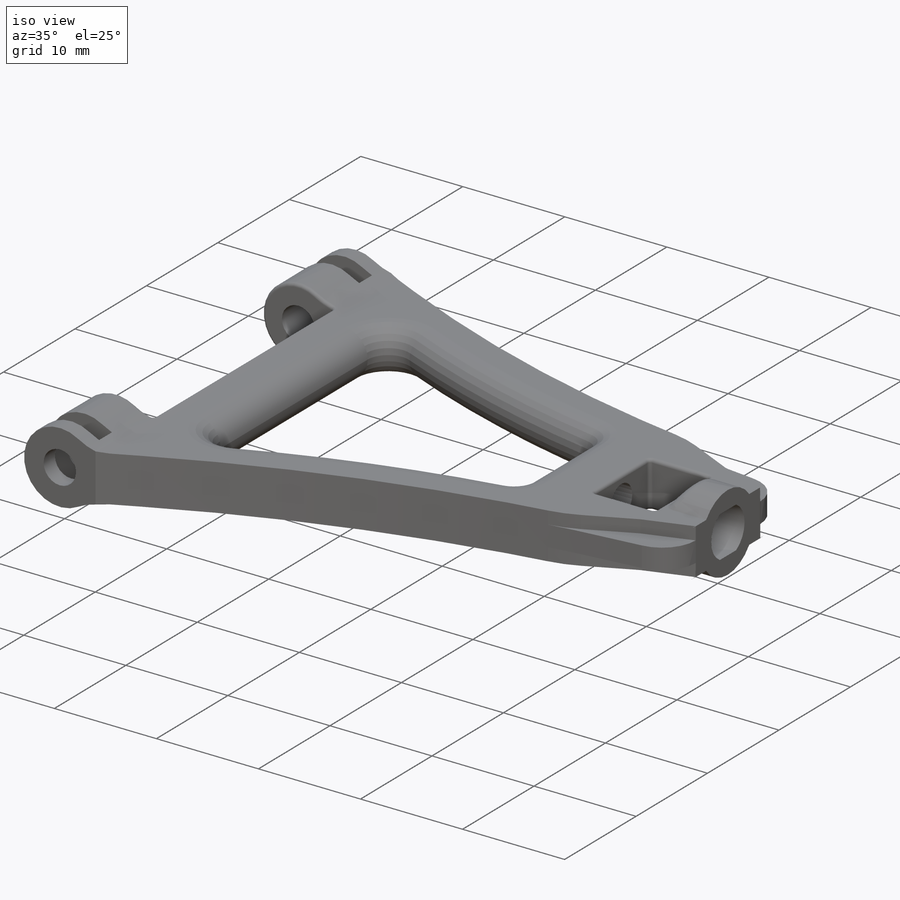
[diagram: iso view]
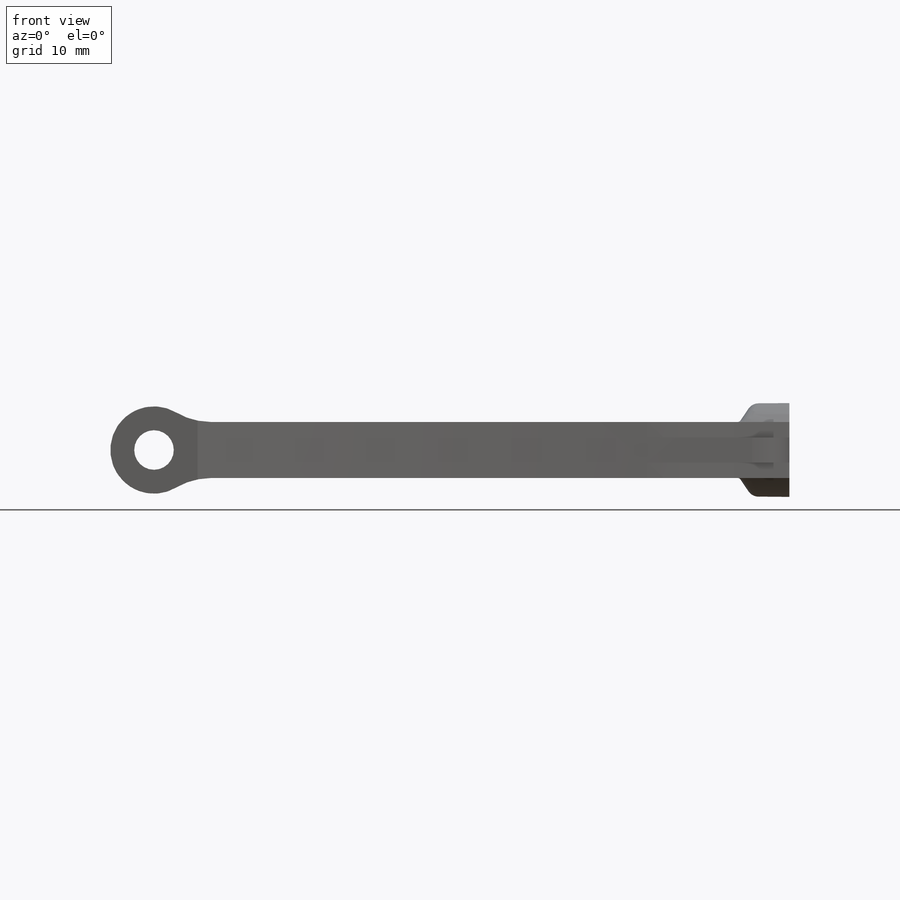
[diagram: front view]
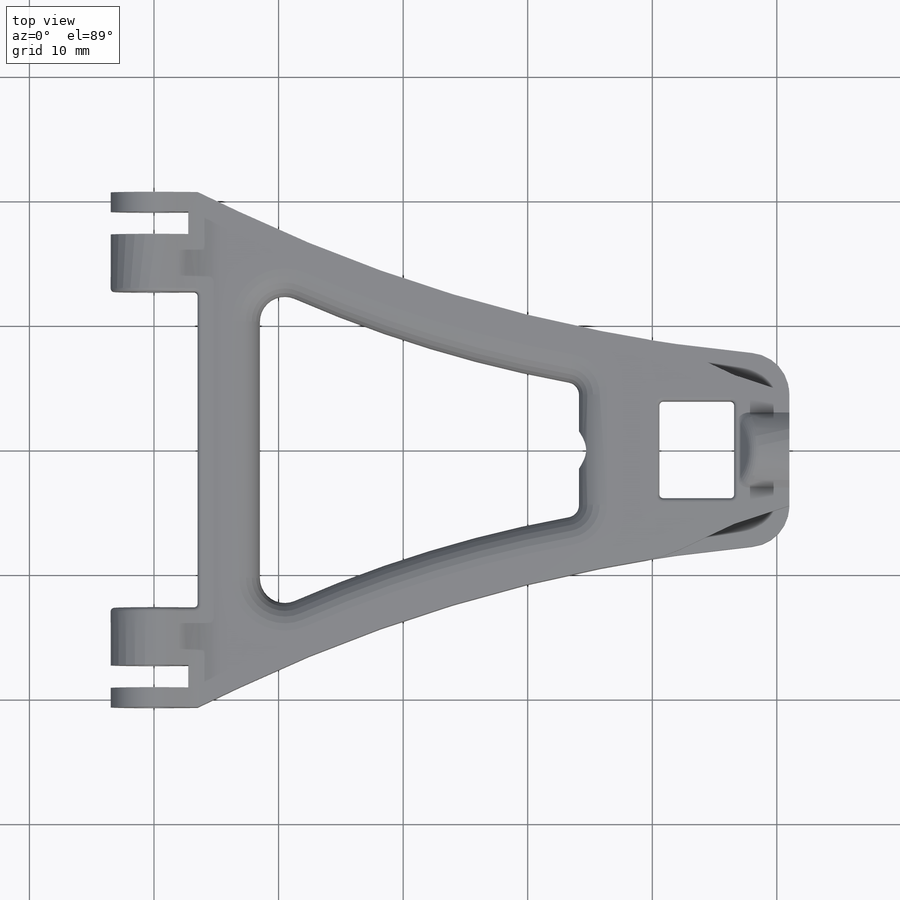
[diagram: top view]
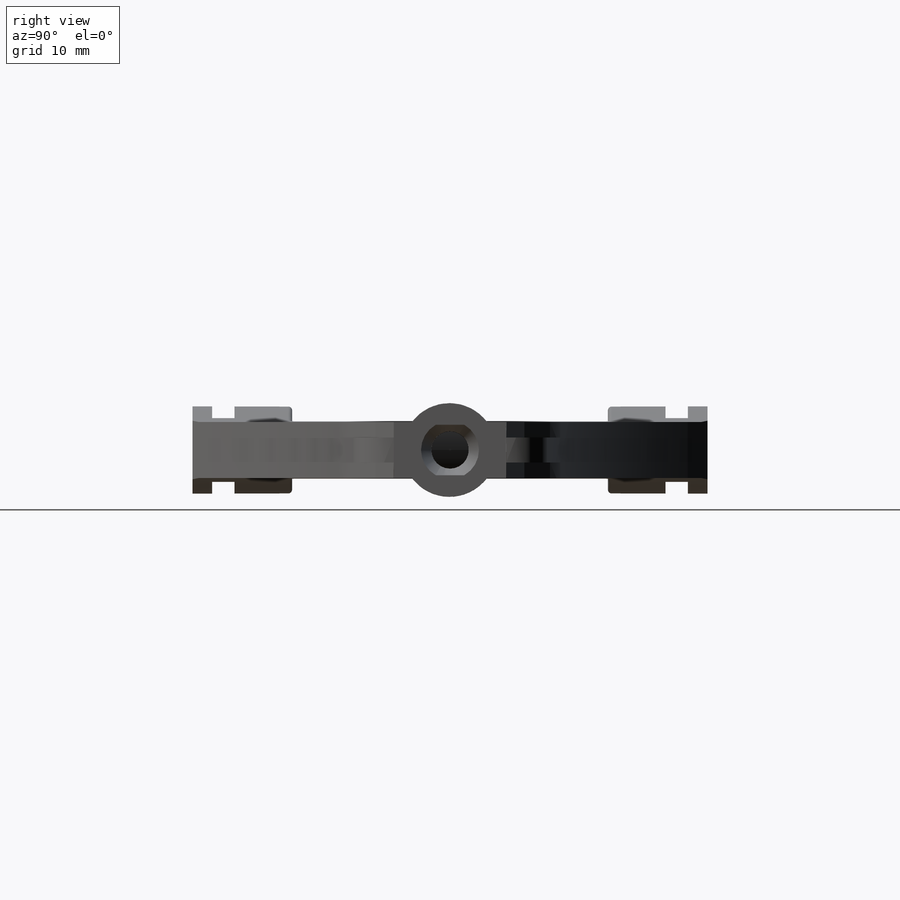
[diagram: right view]
SOLIDWORKS PART (.sldprt)
format: sldprt  version: not decoded by parser v0  size: 691,200 bytes
history: native  units: mm
features: fillet x8, sketch x7, extrude x2, cut_extrude x2, material x1, hole x1, plane x1, mirror x1, chamfer x1 (+11 scaffold rows collapsed)
feature tree (35):
  scaffold x11  (default folders/planes/origin — collapsed)
  material  "6061 Alloy"
  sketch  "Sketch1"  dims[c1.D1=6.0mm c1.D2=6.0mm c1.D3=8.0mm c1.D4=5.0mm c1.D5=5.0mm c1.D6=8.0mm c1.D7=7.0mm c1.D8=28.5mm c1.D9=38.2mm c2.D6=10.0mm c2.D10=63.0mm c2.D11=7.0mm c2.D12=7.25mm c2.D13=7.25mm c2.D14=5.0mm c2.D15=5.0mm c2.D16=6.25mm c2.D17=6.0mm c2.D18=~4.430331mm c2.D19=~2.34166mm c2.D8=1.575mm]
  extrude  "Boss-Extrude1"  Depth=7mm
  sketch  "Sketch2"  dims[D1=3.175mm D3=3.175mm D2=4.5mm]
  cut_extrude  "Cut-Extrude1"  [1 undecoded]
  fillet  "Fillet1"  Radius=2mm
  fillet  "Fillet4"  Radius=1mm
  sketch  "Sketch13"
  hole  "M3x0.5 Tapped Hole1"  Diameter=2.5mm Depth=22.5mm
  sketch  "Sketch15"
  sketch  "Sketch16"  dims[hole-wizard template sketch: 26 standard entries collapsed; hole parameters kept: c8.Tap Drill Dia.=2.5mm c8.Tap Drill Depth=22.5mm c8.Thread Major Dia.=3.0mm c8.Thread Depth=21.0mm c8.Near C'Sink Dia.=4.65mm c8.D6=~4.399409mm c8.Near C'Sink Angle=25.0deg c8.D7=~14.816244mm c8.Drill Angle=118.0deg]
  sketch  "Sketch17"  dims[D1=4.05mm]
  extrude  "Boss-Extrude2"  Depth=3mm
  sketch  "Sketch18"
  cut_extrude  "Cut-Extrude2"  Depth=1.25mm
  plane  "Plane1"
  mirror  "Mirror1"
  fillet  "Fillet6"  Radius=10mm
  fillet  "Fillet8"  Radius=3.3mm
  fillet  "Fillet11"  Radius=2.25mm
  fillet  "Fillet15"  Radius=0.3mm
  chamfer  "Chamfer2"  Distance=1mm Angle=56deg
  fillet  "Fillet17"  Radius=0.3mm
  fillet  "Fillet18"  Radius=1mm
decode coverage: 17 of 22 modeling features carry decoded parameters
note: ~ marks probable driven/reference dimensions
note: 1 parameter value undecoded
note: suppression state not decoded; provenance and decode notes live in map.json
